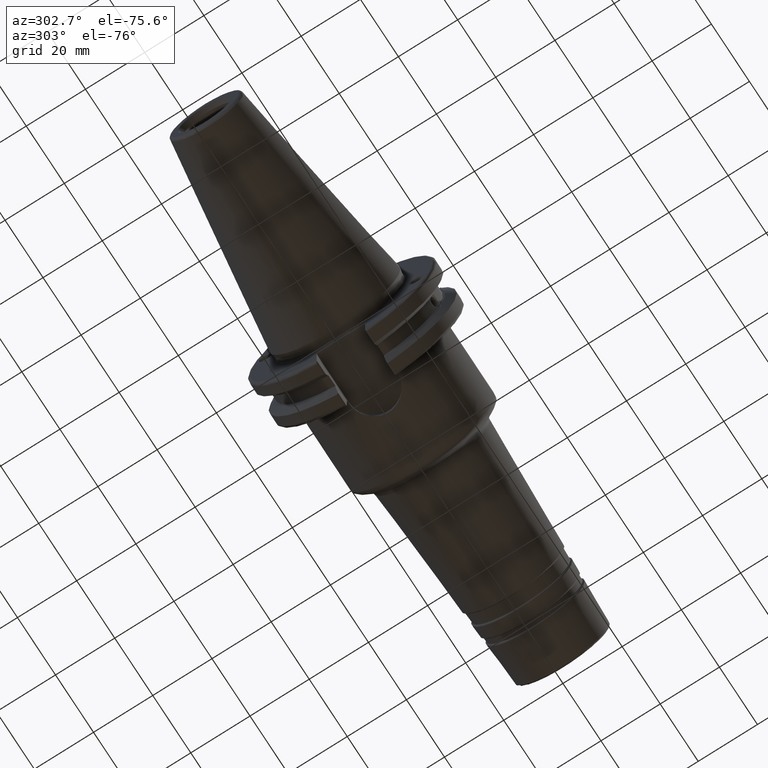
[diagram: clean part render]
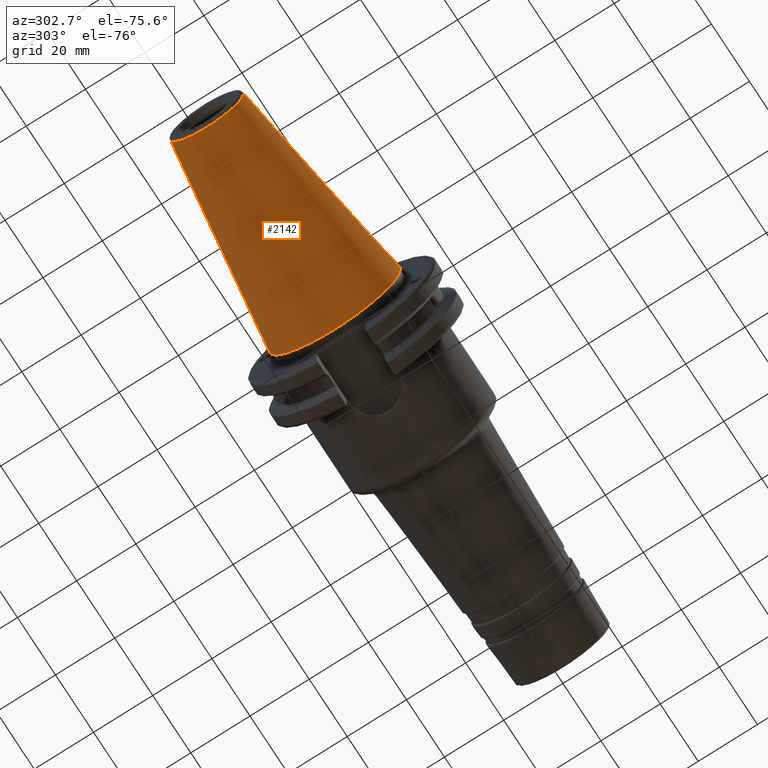
[diagram: same view with one face highlighted and labeled with its STEP entity id]
A machine part, auxiliary view. The second image highlights one B-rep face of the part: STEP entity #2142.
In plain terms, the highlighted conical surface has half-angle 8.297 deg.
Its self-contained STEP definition (entity closure, byte-faithful):
#261=FACE_OUTER_BOUND('',#380,.T.);
#380=EDGE_LOOP('',(#1902,#1903,#1904,#1905,#1906,#1907,#1908));
#490=LINE('',#4138,#589);
#589=VECTOR('',#3081,17.2484375);
#755=CIRCLE('',#2433,12.3966635780937);
#756=CIRCLE('',#2434,12.3966635780937);
#760=CIRCLE('',#2438,12.3966635780937);
#763=CIRCLE('',#2443,22.225);
#764=CIRCLE('',#2444,22.225);
#998=VERTEX_POINT('',#4117);
#999=VERTEX_POINT('',#4118);
#1000=VERTEX_POINT('',#4120);
#1005=VERTEX_POINT('',#4134);
#1006=VERTEX_POINT('',#4135);
#1316=EDGE_CURVE('',#998,#999,#755,.T.);
#1317=EDGE_CURVE('',#999,#1000,#756,.T.);
#1321=EDGE_CURVE('',#1000,#998,#760,.T.);
#1324=EDGE_CURVE('',#1005,#1006,#763,.T.);
#1325=EDGE_CURVE('',#1006,#1005,#764,.T.);
#1326=EDGE_CURVE('',#1006,#999,#490,.T.);
#1902=ORIENTED_EDGE('',*,*,#1324,.F.);
#1903=ORIENTED_EDGE('',*,*,#1325,.F.);
#1904=ORIENTED_EDGE('',*,*,#1326,.T.);
#1905=ORIENTED_EDGE('',*,*,#1316,.F.);
#1906=ORIENTED_EDGE('',*,*,#1321,.F.);
#1907=ORIENTED_EDGE('',*,*,#1317,.F.);
#1908=ORIENTED_EDGE('',*,*,#1326,.F.);
#2057=CONICAL_SURFACE('',#2442,17.2484375,0.144812498238939);
#2142=ADVANCED_FACE('',(#261),#2057,.T.);
#2433=AXIS2_PLACEMENT_3D('',#4119,#3057,#3058);
#2434=AXIS2_PLACEMENT_3D('',#4121,#3059,#3060);
#2438=AXIS2_PLACEMENT_3D('',#4127,#3067,#3068);
#2442=AXIS2_PLACEMENT_3D('',#4133,#3075,#3076);
#2443=AXIS2_PLACEMENT_3D('',#4136,#3077,#3078);
#2444=AXIS2_PLACEMENT_3D('',#4137,#3079,#3080);
#3057=DIRECTION('center_axis',(-1.,0.,0.));
#3058=DIRECTION('ref_axis',(0.,-1.,3.06161699786838E-17));
#3059=DIRECTION('center_axis',(-1.,0.,0.));
#3060=DIRECTION('ref_axis',(0.,-1.,3.06161699786838E-17));
#3067=DIRECTION('center_axis',(-1.,0.,0.));
#3068=DIRECTION('ref_axis',(0.,-1.,3.06161699786838E-17));
#3075=DIRECTION('center_axis',(1.,0.,0.));
#3076=DIRECTION('ref_axis',(0.,1.,0.));
#3077=DIRECTION('center_axis',(1.,0.,0.));
#3078=DIRECTION('ref_axis',(0.,0.,-1.));
#3079=DIRECTION('center_axis',(1.,0.,0.));
#3080=DIRECTION('ref_axis',(0.,0.,-1.));
#3081=DIRECTION('',(-0.989532981063282,0.144306893071729,1.76724974695192E-17));
#4117=CARTESIAN_POINT('',(-67.3943068930717,12.3966635780937,-3.79538359275475E-15));
#4118=CARTESIAN_POINT('',(-67.3943068930718,-12.3966635780937,-1.5181534371019E-15));
#4119=CARTESIAN_POINT('Origin',(-67.3943068930717,0.,-1.89769179637738E-15));
#4120=CARTESIAN_POINT('',(-67.3943068930717,-1.5181534371019E-15,12.3966635780937));
#4121=CARTESIAN_POINT('Origin',(-67.3943068930717,0.,-1.89769179637738E-15));
#4127=CARTESIAN_POINT('Origin',(-67.3943068930717,0.,-1.89769179637738E-15));
#4133=CARTESIAN_POINT('Origin',(-34.125,0.,0.));
#4134=CARTESIAN_POINT('',(0.,22.225,0.));
#4135=CARTESIAN_POINT('',(0.,-22.225,-2.72177751110499E-15));
#4136=CARTESIAN_POINT('Origin',(0.,0.,0.));
#4137=CARTESIAN_POINT('Origin',(0.,0.,0.));
#4138=CARTESIAN_POINT('',(-34.125,-17.2484375,-2.11232437746682E-15));